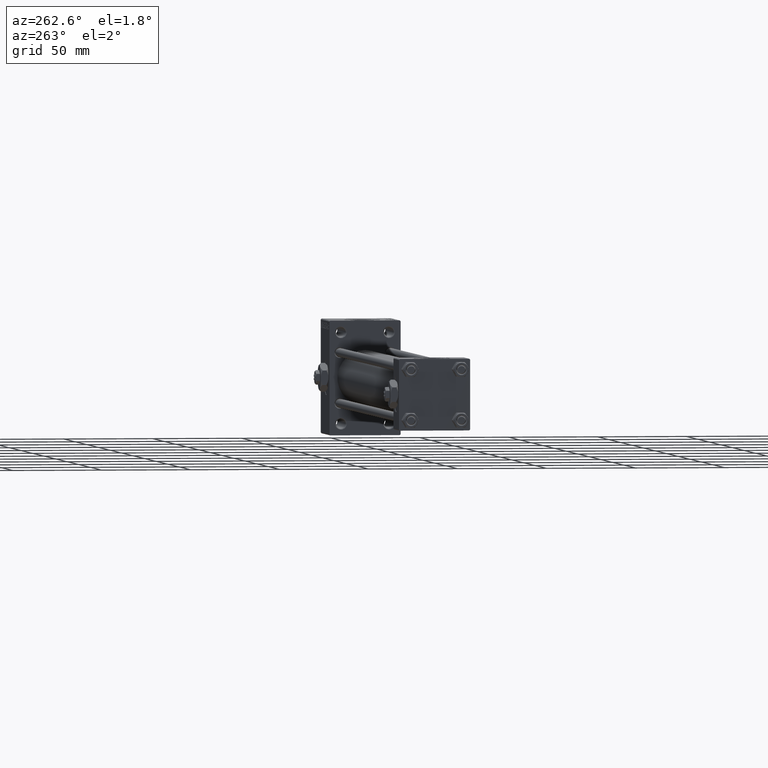
[diagram: clean part render]
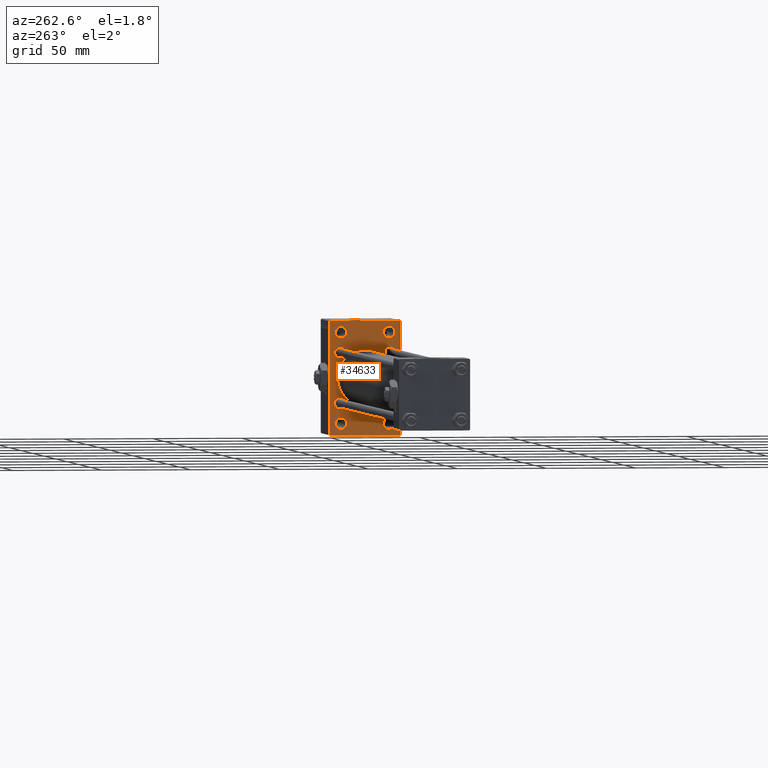
[diagram: same view with one face highlighted and labeled with its STEP entity id]
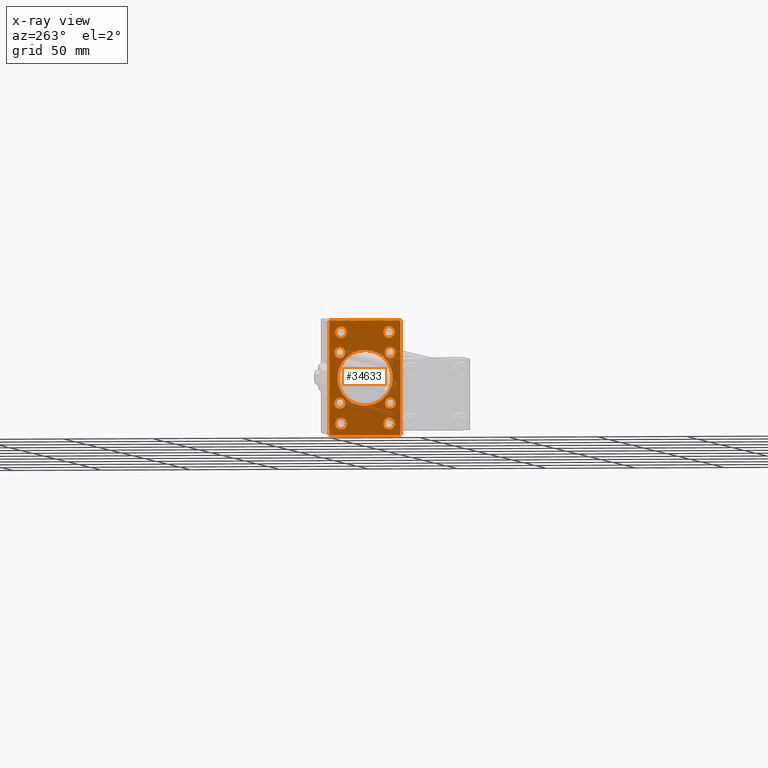
[diagram: x-ray of the same camera — body ghosted, the highlighted face saturated]
A machine part, auxiliary view. The second image highlights one B-rep face of the part: STEP entity #34633.
The next image is the same camera in x-ray: the body ghosted, the highlighted face saturated — about 25% of this face is hidden behind the body in this view.
In plain terms, the highlighted planar face has unit normal (-1, 0, 0).
Its self-contained STEP definition (entity closure, byte-faithful):
#297 = CARTESIAN_POINT ( 'NONE',  ( 301.0000000000000568, 20.00000000000000000, -31.49999999999994316 ) ) ;
#302 = CARTESIAN_POINT ( 'NONE',  ( 301.0000000000000568, -14.15000000000000036, -14.15000000000000036 ) ) ;
#545 = DIRECTION ( 'NONE',  ( 0.000000000000000000, -0.7071067811865524577, 0.7071067811865426878 ) ) ;
#663 = CARTESIAN_POINT ( 'NONE',  ( 301.0000000000000568, -13.50000000000000178, 25.50000000000000355 ) ) ;
#773 = DIRECTION ( 'NONE',  ( 0.000000000000000000, -1.000000000000000000, -1.734723475976807094E-16 ) ) ;
#915 = CARTESIAN_POINT ( 'NONE',  ( 301.0000000000000568, -13.50000000000000178, 25.50000000000000355 ) ) ;
#979 = ORIENTED_EDGE ( 'NONE', *, *, #28904, .F. ) ;
#1985 = DIRECTION ( 'NONE',  ( 1.000000000000000000, 0.000000000000000000, 0.000000000000000000 ) ) ;
#1991 = CARTESIAN_POINT ( 'NONE',  ( 301.0000000000000568, -7.038826752868131828E-16, -15.50000000000000000 ) ) ;
#2467 = CARTESIAN_POINT ( 'NONE',  ( 301.0000000000000568, 13.49999999999999822, 22.25000000000008527 ) ) ;
#2634 = DIRECTION ( 'NONE',  ( 1.000000000000000000, 0.000000000000000000, 0.000000000000000000 ) ) ;
#2705 = EDGE_CURVE ( 'NONE', #48280, #17882, #5867, .T. ) ;
#2751 = EDGE_LOOP ( 'NONE', ( #13723, #44881 ) ) ;
#2790 = LINE ( 'NONE', #22529, #37027 ) ;
#3081 = ORIENTED_EDGE ( 'NONE', *, *, #17351, .T. ) ;
#3086 = VECTOR ( 'NONE', #12677, 1000.000000000000000 ) ;
#3168 = EDGE_CURVE ( 'NONE', #45889, #23639, #14116, .T. ) ;
#3400 = DIRECTION ( 'NONE',  ( -0.000000000000000000, 0.000000000000000000, 1.000000000000000000 ) ) ;
#3427 = DIRECTION ( 'NONE',  ( 1.000000000000000000, 0.000000000000000000, 0.000000000000000000 ) ) ;
#3565 = DIRECTION ( 'NONE',  ( 0.000000000000000000, 0.000000000000000000, -1.000000000000000000 ) ) ;
#3568 = EDGE_LOOP ( 'NONE', ( #5186, #45703 ) ) ;
#3746 = CARTESIAN_POINT ( 'NONE',  ( 301.0000000000000568, -14.15000000000000036, -17.15000000000000568 ) ) ;
#3753 = VERTEX_POINT ( 'NONE', #3746 ) ;
#3758 = AXIS2_PLACEMENT_3D ( 'NONE', #4602, #14707, #3400 ) ;
#3842 = EDGE_CURVE ( 'NONE', #4707, #43064, #32952, .T. ) ;
#4141 = CARTESIAN_POINT ( 'NONE',  ( 301.0000000000000568, 20.00000000000000000, -32.00000000000000000 ) ) ;
#4358 = LINE ( 'NONE', #27707, #9292 ) ;
#4396 = ORIENTED_EDGE ( 'NONE', *, *, #40738, .T. ) ;
#4438 = DIRECTION ( 'NONE',  ( 1.000000000000000000, 0.000000000000000000, 0.000000000000000000 ) ) ;
#4602 = CARTESIAN_POINT ( 'NONE',  ( 301.0000000000000568, 0.000000000000000000, 0.000000000000000000 ) ) ;
#4707 = VERTEX_POINT ( 'NONE', #49112 ) ;
#4976 = AXIS2_PLACEMENT_3D ( 'NONE', #47801, #40106, #12933 ) ;
#5060 = VERTEX_POINT ( 'NONE', #30171 ) ;
#5186 = ORIENTED_EDGE ( 'NONE', *, *, #43229, .T. ) ;
#5263 = DIRECTION ( 'NONE',  ( 1.000000000000000000, 0.000000000000000000, 0.000000000000000000 ) ) ;
#5432 = CARTESIAN_POINT ( 'NONE',  ( 301.0000000000000568, 14.15000000000000036, 17.15000000000000568 ) ) ;
#5480 = AXIS2_PLACEMENT_3D ( 'NONE', #16612, #39693, #39955 ) ;
#5560 = LINE ( 'NONE', #36839, #32711 ) ;
#5776 = DIRECTION ( 'NONE',  ( 0.000000000000000000, 0.000000000000000000, 1.000000000000000000 ) ) ;
#5867 = CIRCLE ( 'NONE', #12428, 3.000000000000004441 ) ;
#6332 = DIRECTION ( 'NONE',  ( 0.000000000000000000, 0.000000000000000000, 1.000000000000000000 ) ) ;
#6383 = EDGE_CURVE ( 'NONE', #10968, #24837, #32238, .T. ) ;
#6407 = ORIENTED_EDGE ( 'NONE', *, *, #27349, .T. ) ;
#6975 = ORIENTED_EDGE ( 'NONE', *, *, #8930, .T. ) ;
#8339 = AXIS2_PLACEMENT_3D ( 'NONE', #915, #24266, #5776 ) ;
#8542 = AXIS2_PLACEMENT_3D ( 'NONE', #23053, #38705, #3565 ) ;
#8796 = AXIS2_PLACEMENT_3D ( 'NONE', #13938, #24468, #34188 ) ;
#8930 = EDGE_CURVE ( 'NONE', #26970, #47919, #12595, .T. ) ;
#9225 = VERTEX_POINT ( 'NONE', #16142 ) ;
#9257 = CIRCLE ( 'NONE', #22346, 3.249999999999919620 ) ;
#9285 = EDGE_CURVE ( 'NONE', #19777, #45008, #12564, .T. ) ;
#9292 = VECTOR ( 'NONE', #773, 1000.000000000000000 ) ;
#9353 = EDGE_CURVE ( 'NONE', #26402, #40893, #26476, .T. ) ;
#9487 = CARTESIAN_POINT ( 'NONE',  ( 301.0000000000000568, 13.49999999999999822, -22.25000000000007816 ) ) ;
#9695 = VERTEX_POINT ( 'NONE', #27490 ) ;
#10048 = EDGE_LOOP ( 'NONE', ( #36973, #14308 ) ) ;
#10082 = DIRECTION ( 'NONE',  ( 0.000000000000000000, 0.000000000000000000, 1.000000000000000000 ) ) ;
#10145 = CARTESIAN_POINT ( 'NONE',  ( 301.0000000000000568, 13.49999999999999822, 28.74999999999992539 ) ) ;
#10157 = DIRECTION ( 'NONE',  ( -0.000000000000000000, 0.7071067811865474617, 0.7071067811865474617 ) ) ;
#10843 = FACE_BOUND ( 'NONE', #10048, .T. ) ;
#10872 = DIRECTION ( 'NONE',  ( 0.000000000000000000, 0.000000000000000000, 1.000000000000000000 ) ) ;
#10940 = ORIENTED_EDGE ( 'NONE', *, *, #3168, .T. ) ;
#10968 = VERTEX_POINT ( 'NONE', #19968 ) ;
#11026 = EDGE_CURVE ( 'NONE', #45008, #19777, #37999, .T. ) ;
#11331 = CARTESIAN_POINT ( 'NONE',  ( 301.0000000000000568, -13.50000000000000533, -25.49999999999999645 ) ) ;
#12303 = FACE_BOUND ( 'NONE', #3568, .T. ) ;
#12428 = AXIS2_PLACEMENT_3D ( 'NONE', #49143, #45302, #6332 ) ;
#12564 = CIRCLE ( 'NONE', #25666, 15.50000000000000000 ) ;
#12573 = ORIENTED_EDGE ( 'NONE', *, *, #22776, .F. ) ;
#12595 = LINE ( 'NONE', #40783, #33825 ) ;
#12677 = DIRECTION ( 'NONE',  ( 0.000000000000000000, 0.7071067811865081598, -0.7071067811865867636 ) ) ;
#12933 = DIRECTION ( 'NONE',  ( 0.000000000000000000, 0.000000000000000000, 1.000000000000000000 ) ) ;
#12969 = EDGE_LOOP ( 'NONE', ( #28292, #43669 ) ) ;
#13001 = AXIS2_PLACEMENT_3D ( 'NONE', #29965, #26117, #41759 ) ;
#13723 = ORIENTED_EDGE ( 'NONE', *, *, #9353, .T. ) ;
#13938 = CARTESIAN_POINT ( 'NONE',  ( 301.0000000000000568, 13.49999999999999822, 25.50000000000000355 ) ) ;
#14116 = CIRCLE ( 'NONE', #39477, 3.249999999999919620 ) ;
#14308 = ORIENTED_EDGE ( 'NONE', *, *, #6383, .T. ) ;
#14707 = DIRECTION ( 'NONE',  ( -1.000000000000000000, 0.000000000000000000, -0.000000000000000000 ) ) ;
#15067 = VERTEX_POINT ( 'NONE', #40306 ) ;
#15106 = CARTESIAN_POINT ( 'NONE',  ( 301.0000000000000568, 20.00000000000000000, 31.49999999999994316 ) ) ;
#15110 = DIRECTION ( 'NONE',  ( 0.000000000000000000, 0.000000000000000000, -1.000000000000000000 ) ) ;
#15472 = DIRECTION ( 'NONE',  ( 0.000000000000000000, -1.000000000000000000, 0.000000000000000000 ) ) ;
#15816 = VERTEX_POINT ( 'NONE', #37193 ) ;
#16142 = CARTESIAN_POINT ( 'NONE',  ( 301.0000000000000568, 19.49999999999994316, -32.00000000000000000 ) ) ;
#16155 = LINE ( 'NONE', #40479, #44811 ) ;
#16203 = CIRCLE ( 'NONE', #44017, 3.000000000000004441 ) ;
#16612 = CARTESIAN_POINT ( 'NONE',  ( 301.0000000000000568, -13.50000000000000533, -25.49999999999999645 ) ) ;
#17351 = EDGE_CURVE ( 'NONE', #9225, #26970, #23140, .T. ) ;
#17384 = VERTEX_POINT ( 'NONE', #19800 ) ;
#17724 = EDGE_CURVE ( 'NONE', #31148, #42080, #16155, .T. ) ;
#17784 = AXIS2_PLACEMENT_3D ( 'NONE', #23428, #50609, #50087 ) ;
#17882 = VERTEX_POINT ( 'NONE', #26547 ) ;
#18035 = EDGE_CURVE ( 'NONE', #15067, #31148, #47808, .T. ) ;
#18216 = EDGE_CURVE ( 'NONE', #40893, #26402, #30921, .T. ) ;
#18281 = EDGE_CURVE ( 'NONE', #27909, #17384, #16203, .T. ) ;
#18315 = EDGE_CURVE ( 'NONE', #40981, #3753, #49752, .T. ) ;
#18615 = CARTESIAN_POINT ( 'NONE',  ( 301.0000000000000568, -2.602085213965210642E-15, 15.50000000000000000 ) ) ;
#19777 = VERTEX_POINT ( 'NONE', #1991 ) ;
#19800 = CARTESIAN_POINT ( 'NONE',  ( 301.0000000000000568, 14.15000000000000036, 11.14999999999999680 ) ) ;
#19968 = CARTESIAN_POINT ( 'NONE',  ( 301.0000000000000568, 14.15000000000000036, -17.15000000000000568 ) ) ;
#20195 = EDGE_CURVE ( 'NONE', #3753, #40981, #27933, .T. ) ;
#21561 = AXIS2_PLACEMENT_3D ( 'NONE', #24689, #4438, #32136 ) ;
#21679 = DIRECTION ( 'NONE',  ( 0.000000000000000000, 0.000000000000000000, 1.000000000000000000 ) ) ;
#21689 = LINE ( 'NONE', #41185, #32135 ) ;
#21984 = CARTESIAN_POINT ( 'NONE',  ( 301.0000000000000568, -2.602085213965210642E-15, 0.000000000000000000 ) ) ;
#22346 = AXIS2_PLACEMENT_3D ( 'NONE', #31429, #39622, #47076 ) ;
#22377 = FACE_BOUND ( 'NONE', #48047, .T. ) ;
#22529 = CARTESIAN_POINT ( 'NONE',  ( 301.0000000000000568, -20.00000000000000000, 31.99999999999999289 ) ) ;
#22735 = AXIS2_PLACEMENT_3D ( 'NONE', #302, #23660, #47502 ) ;
#22754 = EDGE_LOOP ( 'NONE', ( #32831, #33889 ) ) ;
#22776 = EDGE_CURVE ( 'NONE', #5060, #47919, #2790, .T. ) ;
#23053 = CARTESIAN_POINT ( 'NONE',  ( 301.0000000000000568, -2.602085213965210642E-15, 0.000000000000000000 ) ) ;
#23109 = ORIENTED_EDGE ( 'NONE', *, *, #28237, .T. ) ;
#23140 = LINE ( 'NONE', #4141, #27614 ) ;
#23231 = CARTESIAN_POINT ( 'NONE',  ( 301.0000000000000568, -14.15000000000000036, -11.14999999999999680 ) ) ;
#23315 = ORIENTED_EDGE ( 'NONE', *, *, #3842, .T. ) ;
#23428 = CARTESIAN_POINT ( 'NONE',  ( 301.0000000000000568, 14.15000000000000036, 14.15000000000000036 ) ) ;
#23639 = VERTEX_POINT ( 'NONE', #9487 ) ;
#23660 = DIRECTION ( 'NONE',  ( 1.000000000000000000, 0.000000000000000000, 0.000000000000000000 ) ) ;
#24092 = FACE_BOUND ( 'NONE', #48848, .T. ) ;
#24266 = DIRECTION ( 'NONE',  ( 1.000000000000000000, 0.000000000000000000, 0.000000000000000000 ) ) ;
#24359 = CARTESIAN_POINT ( 'NONE',  ( 301.0000000000000568, -13.50000000000000178, 22.25000000000008171 ) ) ;
#24468 = DIRECTION ( 'NONE',  ( 1.000000000000000000, 0.000000000000000000, 0.000000000000000000 ) ) ;
#24689 = CARTESIAN_POINT ( 'NONE',  ( 301.0000000000000568, 14.15000000000000036, -14.15000000000000036 ) ) ;
#24837 = VERTEX_POINT ( 'NONE', #29740 ) ;
#25138 = CIRCLE ( 'NONE', #17784, 3.000000000000004441 ) ;
#25424 = EDGE_CURVE ( 'NONE', #43064, #4707, #39457, .T. ) ;
#25666 = AXIS2_PLACEMENT_3D ( 'NONE', #21984, #37880, #36871 ) ;
#26117 = DIRECTION ( 'NONE',  ( 1.000000000000000000, 0.000000000000000000, 0.000000000000000000 ) ) ;
#26402 = VERTEX_POINT ( 'NONE', #10145 ) ;
#26476 = CIRCLE ( 'NONE', #37119, 3.249999999999919620 ) ;
#26547 = CARTESIAN_POINT ( 'NONE',  ( 301.0000000000000568, -14.15000000000000036, 17.15000000000000568 ) ) ;
#26970 = VERTEX_POINT ( 'NONE', #32354 ) ;
#27215 = CARTESIAN_POINT ( 'NONE',  ( 301.0000000000000568, -19.49999999999994316, 31.99999999999999289 ) ) ;
#27349 = EDGE_CURVE ( 'NONE', #5060, #36550, #21689, .T. ) ;
#27490 = CARTESIAN_POINT ( 'NONE',  ( 301.0000000000000568, -13.50000000000000533, -28.74999999999991473 ) ) ;
#27492 = CIRCLE ( 'NONE', #37327, 3.000000000000004441 ) ;
#27614 = VECTOR ( 'NONE', #15472, 1000.000000000000000 ) ;
#27707 = CARTESIAN_POINT ( 'NONE',  ( 301.0000000000000568, 20.00000000000000000, 32.00000000000000000 ) ) ;
#27909 = VERTEX_POINT ( 'NONE', #5432 ) ;
#27933 = CIRCLE ( 'NONE', #4976, 3.000000000000004441 ) ;
#28192 = FACE_BOUND ( 'NONE', #44676, .T. ) ;
#28236 = ORIENTED_EDGE ( 'NONE', *, *, #25424, .T. ) ;
#28237 = EDGE_CURVE ( 'NONE', #23639, #45889, #9257, .T. ) ;
#28292 = ORIENTED_EDGE ( 'NONE', *, *, #18281, .T. ) ;
#28904 = EDGE_CURVE ( 'NONE', #15067, #36550, #4358, .T. ) ;
#29234 = CIRCLE ( 'NONE', #5480, 3.249999999999919620 ) ;
#29740 = CARTESIAN_POINT ( 'NONE',  ( 301.0000000000000568, 14.15000000000000036, -11.14999999999999680 ) ) ;
#29965 = CARTESIAN_POINT ( 'NONE',  ( 301.0000000000000568, -14.15000000000000036, 14.15000000000000036 ) ) ;
#30171 = CARTESIAN_POINT ( 'NONE',  ( 301.0000000000000568, -20.00000000000000000, 31.49999999999993605 ) ) ;
#30921 = CIRCLE ( 'NONE', #8796, 3.249999999999919620 ) ;
#31004 = CIRCLE ( 'NONE', #13001, 3.000000000000004441 ) ;
#31148 = VERTEX_POINT ( 'NONE', #15106 ) ;
#31429 = CARTESIAN_POINT ( 'NONE',  ( 301.0000000000000568, 13.49999999999999822, -25.50000000000000000 ) ) ;
#31725 = EDGE_LOOP ( 'NONE', ( #23315, #28236 ) ) ;
#31785 = ORIENTED_EDGE ( 'NONE', *, *, #18035, .T. ) ;
#32136 = DIRECTION ( 'NONE',  ( 0.000000000000000000, 0.000000000000000000, 1.000000000000000000 ) ) ;
#32135 = VECTOR ( 'NONE', #10157, 1000.000000000000114 ) ;
#32238 = CIRCLE ( 'NONE', #21561, 3.000000000000004441 ) ;
#32354 = CARTESIAN_POINT ( 'NONE',  ( 301.0000000000000568, -19.50000000000000000, -32.00000000000000000 ) ) ;
#32452 = DIRECTION ( 'NONE',  ( 0.000000000000000000, 0.000000000000000000, 1.000000000000000000 ) ) ;
#32711 = VECTOR ( 'NONE', #36594, 1000.000000000000114 ) ;
#32831 = ORIENTED_EDGE ( 'NONE', *, *, #18315, .T. ) ;
#32952 = CIRCLE ( 'NONE', #37900, 3.249999999999919620 ) ;
#33825 = VECTOR ( 'NONE', #545, 1000.000000000000000 ) ;
#33889 = ORIENTED_EDGE ( 'NONE', *, *, #20195, .T. ) ;
#34177 = EDGE_CURVE ( 'NONE', #24837, #10968, #27492, .T. ) ;
#34188 = DIRECTION ( 'NONE',  ( 0.000000000000000000, 0.000000000000000000, 1.000000000000000000 ) ) ;
#34633 = ADVANCED_FACE ( 'NONE', ( #46506, #28192, #22377, #49820, #12303, #43575, #10843, #42127, #24092, #38025 ), #38539, .T. ) ;
#34864 = ORIENTED_EDGE ( 'NONE', *, *, #11026, .T. ) ;
#36171 = ORIENTED_EDGE ( 'NONE', *, *, #9285, .T. ) ;
#36550 = VERTEX_POINT ( 'NONE', #27215 ) ;
#36563 = EDGE_CURVE ( 'NONE', #9695, #15816, #39865, .T. ) ;
#36594 = DIRECTION ( 'NONE',  ( -0.000000000000000000, -0.7071067811865474617, -0.7071067811865474617 ) ) ;
#36839 = CARTESIAN_POINT ( 'NONE',  ( 301.0000000000000568, 25.74999999999997513, -25.74999999999997513 ) ) ;
#36871 = DIRECTION ( 'NONE',  ( 0.000000000000000000, 0.000000000000000000, -1.000000000000000000 ) ) ;
#36973 = ORIENTED_EDGE ( 'NONE', *, *, #34177, .T. ) ;
#37027 = VECTOR ( 'NONE', #15110, 1000.000000000000000 ) ;
#37119 = AXIS2_PLACEMENT_3D ( 'NONE', #45070, #1985, #49415 ) ;
#37193 = CARTESIAN_POINT ( 'NONE',  ( 301.0000000000000568, -13.50000000000000533, -22.25000000000007461 ) ) ;
#37327 = AXIS2_PLACEMENT_3D ( 'NONE', #38084, #40924, #21679 ) ;
#37463 = CARTESIAN_POINT ( 'NONE',  ( 301.0000000000000568, -14.15000000000000036, 11.14999999999999503 ) ) ;
#37765 = CARTESIAN_POINT ( 'NONE',  ( 301.0000000000000568, 14.15000000000000036, 14.15000000000000036 ) ) ;
#37880 = DIRECTION ( 'NONE',  ( 1.000000000000000000, 0.000000000000000000, 0.000000000000000000 ) ) ;
#37900 = AXIS2_PLACEMENT_3D ( 'NONE', #663, #5263, #32452 ) ;
#37999 = CIRCLE ( 'NONE', #8542, 15.50000000000000000 ) ;
#38025 = FACE_OUTER_BOUND ( 'NONE', #39844, .T. ) ;
#38084 = CARTESIAN_POINT ( 'NONE',  ( 301.0000000000000568, 14.15000000000000036, -14.15000000000000036 ) ) ;
#38539 = PLANE ( 'NONE',  #3758 ) ;
#38705 = DIRECTION ( 'NONE',  ( 1.000000000000000000, 0.000000000000000000, 0.000000000000000000 ) ) ;
#39457 = CIRCLE ( 'NONE', #8339, 3.249999999999919620 ) ;
#39477 = AXIS2_PLACEMENT_3D ( 'NONE', #46005, #3427, #10872 ) ;
#39622 = DIRECTION ( 'NONE',  ( 1.000000000000000000, 0.000000000000000000, 0.000000000000000000 ) ) ;
#39693 = DIRECTION ( 'NONE',  ( 1.000000000000000000, 0.000000000000000000, 0.000000000000000000 ) ) ;
#39844 = EDGE_LOOP ( 'NONE', ( #3081, #6975, #12573, #6407, #979, #31785, #50433, #43928 ) ) ;
#39865 = CIRCLE ( 'NONE', #46423, 3.249999999999919620 ) ;
#39955 = DIRECTION ( 'NONE',  ( 0.000000000000000000, 0.000000000000000000, 1.000000000000000000 ) ) ;
#40106 = DIRECTION ( 'NONE',  ( 1.000000000000000000, 0.000000000000000000, 0.000000000000000000 ) ) ;
#40231 = DIRECTION ( 'NONE',  ( 0.000000000000000000, 0.000000000000000000, -1.000000000000000000 ) ) ;
#40306 = CARTESIAN_POINT ( 'NONE',  ( 301.0000000000000568, 19.50000000000000000, 32.00000000000000000 ) ) ;
#40477 = EDGE_CURVE ( 'NONE', #17384, #27909, #25138, .T. ) ;
#40479 = CARTESIAN_POINT ( 'NONE',  ( 301.0000000000000568, 20.00000000000000000, 32.00000000000000000 ) ) ;
#40738 = EDGE_CURVE ( 'NONE', #15816, #9695, #29234, .T. ) ;
#40783 = CARTESIAN_POINT ( 'NONE',  ( 301.0000000000000568, -25.74999999999986500, -25.75000000000022027 ) ) ;
#40893 = VERTEX_POINT ( 'NONE', #2467 ) ;
#40924 = DIRECTION ( 'NONE',  ( 1.000000000000000000, 0.000000000000000000, 0.000000000000000000 ) ) ;
#40981 = VERTEX_POINT ( 'NONE', #23231 ) ;
#41185 = CARTESIAN_POINT ( 'NONE',  ( 301.0000000000000568, -25.74999999999997158, 25.74999999999997158 ) ) ;
#41759 = DIRECTION ( 'NONE',  ( 0.000000000000000000, 0.000000000000000000, 1.000000000000000000 ) ) ;
#42080 = VERTEX_POINT ( 'NONE', #297 ) ;
#42127 = FACE_BOUND ( 'NONE', #22754, .T. ) ;
#42353 = DIRECTION ( 'NONE',  ( 1.000000000000000000, 0.000000000000000000, 0.000000000000000000 ) ) ;
#42891 = CARTESIAN_POINT ( 'NONE',  ( 301.0000000000000568, -20.00000000000000000, -31.50000000000000711 ) ) ;
#43064 = VERTEX_POINT ( 'NONE', #24359 ) ;
#43229 = EDGE_CURVE ( 'NONE', #17882, #48280, #31004, .T. ) ;
#43575 = FACE_BOUND ( 'NONE', #12969, .T. ) ;
#43669 = ORIENTED_EDGE ( 'NONE', *, *, #40477, .T. ) ;
#43928 = ORIENTED_EDGE ( 'NONE', *, *, #45758, .T. ) ;
#43960 = CARTESIAN_POINT ( 'NONE',  ( 301.0000000000000568, 25.75000000000108002, 25.74999999999822720 ) ) ;
#44017 = AXIS2_PLACEMENT_3D ( 'NONE', #37765, #2634, #10082 ) ;
#44676 = EDGE_LOOP ( 'NONE', ( #4396, #48658 ) ) ;
#44811 = VECTOR ( 'NONE', #40231, 1000.000000000000000 ) ;
#44881 = ORIENTED_EDGE ( 'NONE', *, *, #18216, .T. ) ;
#45008 = VERTEX_POINT ( 'NONE', #18615 ) ;
#45070 = CARTESIAN_POINT ( 'NONE',  ( 301.0000000000000568, 13.49999999999999822, 25.50000000000000355 ) ) ;
#45302 = DIRECTION ( 'NONE',  ( 1.000000000000000000, 0.000000000000000000, 0.000000000000000000 ) ) ;
#45703 = ORIENTED_EDGE ( 'NONE', *, *, #2705, .T. ) ;
#45758 = EDGE_CURVE ( 'NONE', #42080, #9225, #5560, .T. ) ;
#45889 = VERTEX_POINT ( 'NONE', #49891 ) ;
#46005 = CARTESIAN_POINT ( 'NONE',  ( 301.0000000000000568, 13.49999999999999822, -25.50000000000000000 ) ) ;
#46423 = AXIS2_PLACEMENT_3D ( 'NONE', #11331, #42353, #50031 ) ;
#46506 = FACE_BOUND ( 'NONE', #31725, .T. ) ;
#47076 = DIRECTION ( 'NONE',  ( 0.000000000000000000, 0.000000000000000000, 1.000000000000000000 ) ) ;
#47502 = DIRECTION ( 'NONE',  ( 0.000000000000000000, 0.000000000000000000, 1.000000000000000000 ) ) ;
#47801 = CARTESIAN_POINT ( 'NONE',  ( 301.0000000000000568, -14.15000000000000036, -14.15000000000000036 ) ) ;
#47808 = LINE ( 'NONE', #43960, #3086 ) ;
#47919 = VERTEX_POINT ( 'NONE', #42891 ) ;
#48047 = EDGE_LOOP ( 'NONE', ( #23109, #10940 ) ) ;
#48280 = VERTEX_POINT ( 'NONE', #37463 ) ;
#48658 = ORIENTED_EDGE ( 'NONE', *, *, #36563, .T. ) ;
#48848 = EDGE_LOOP ( 'NONE', ( #34864, #36171 ) ) ;
#49112 = CARTESIAN_POINT ( 'NONE',  ( 301.0000000000000568, -13.50000000000000178, 28.74999999999992184 ) ) ;
#49143 = CARTESIAN_POINT ( 'NONE',  ( 301.0000000000000568, -14.15000000000000036, 14.15000000000000036 ) ) ;
#49415 = DIRECTION ( 'NONE',  ( 0.000000000000000000, 0.000000000000000000, 1.000000000000000000 ) ) ;
#49752 = CIRCLE ( 'NONE', #22735, 3.000000000000004441 ) ;
#49820 = FACE_BOUND ( 'NONE', #2751, .T. ) ;
#49891 = CARTESIAN_POINT ( 'NONE',  ( 301.0000000000000568, 13.49999999999999822, -28.74999999999991829 ) ) ;
#50031 = DIRECTION ( 'NONE',  ( 0.000000000000000000, 0.000000000000000000, 1.000000000000000000 ) ) ;
#50087 = DIRECTION ( 'NONE',  ( 0.000000000000000000, 0.000000000000000000, 1.000000000000000000 ) ) ;
#50433 = ORIENTED_EDGE ( 'NONE', *, *, #17724, .T. ) ;
#50609 = DIRECTION ( 'NONE',  ( 1.000000000000000000, 0.000000000000000000, 0.000000000000000000 ) ) ;